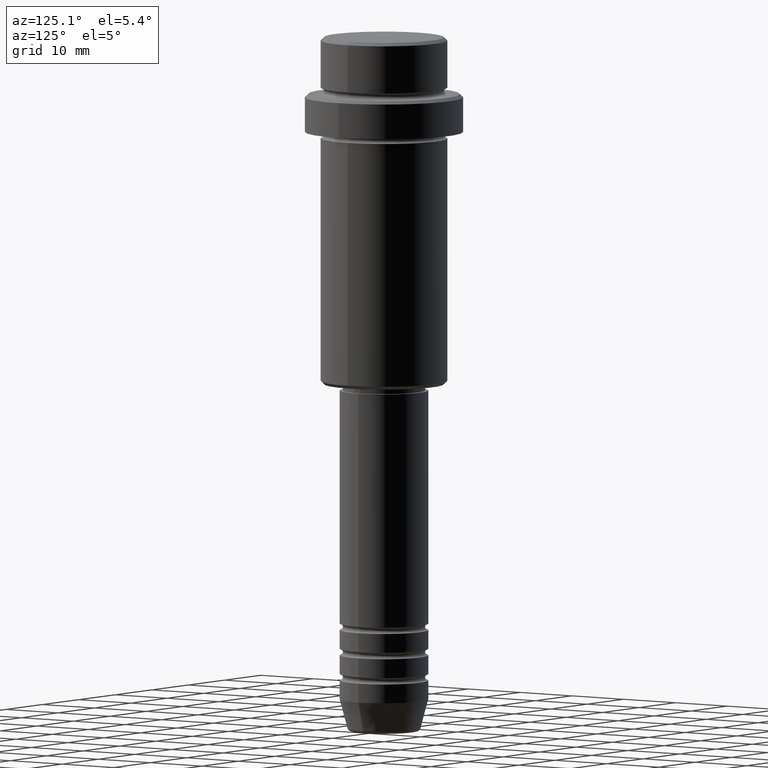
[diagram: clean part render]
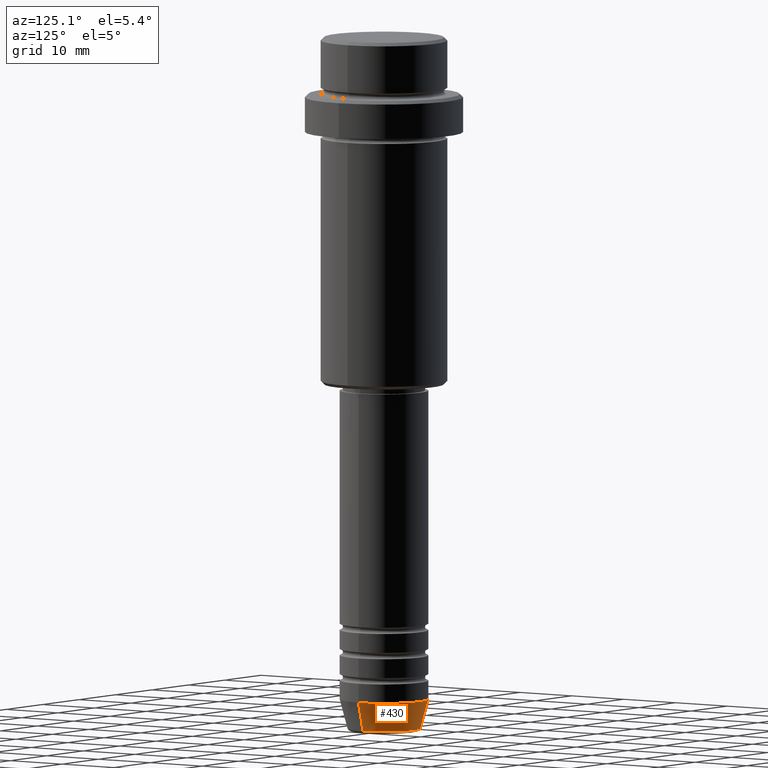
[diagram: same view with one face highlighted and labeled with its STEP entity id]
A machine part, auxiliary view. The second image highlights one B-rep face of the part: STEP entity #430.
In plain terms, the highlighted conical surface has half-angle 15 deg.
Its self-contained STEP definition (entity closure, byte-faithful):
#46 = CIRCLE ( 'NONE', #578, 7.000000000000000000 ) ;
#79 = VERTEX_POINT ( 'NONE', #1351 ) ;
#86 = CARTESIAN_POINT ( 'NONE',  ( 0.000000000000000000, 0.000000000000000000, -105.0000000000000142 ) ) ;
#120 = DIRECTION ( 'NONE',  ( -0.2588190451025213501, 3.169619151431772337E-17, 0.9659258262890680902 ) ) ;
#125 = VERTEX_POINT ( 'NONE', #585 ) ;
#167 = CARTESIAN_POINT ( 'NONE',  ( 5.759553456999435994, 0.000000000000000000, -109.6294095225512564 ) ) ;
#186 = EDGE_CURVE ( 'NONE', #435, #79, #944, .T. ) ;
#253 = CARTESIAN_POINT ( 'NONE',  ( 0.000000000000000000, 0.000000000000000000, -105.0000000000000142 ) ) ;
#291 = DIRECTION ( 'NONE',  ( 0.2588190451025213501, 0.000000000000000000, 0.9659258262890680902 ) ) ;
#310 = ORIENTED_EDGE ( 'NONE', *, *, #745, .F. ) ;
#330 = ORIENTED_EDGE ( 'NONE', *, *, #679, .T. ) ;
#408 = DIRECTION ( 'NONE',  ( 1.000000000000000000, 0.000000000000000000, 0.000000000000000000 ) ) ;
#413 = CARTESIAN_POINT ( 'NONE',  ( 0.000000000000000000, 0.000000000000000000, -109.6294095225512564 ) ) ;
#430 = ADVANCED_FACE ( 'NONE', ( #494 ), #1388, .T. ) ;
#435 = VERTEX_POINT ( 'NONE', #167 ) ;
#437 = CARTESIAN_POINT ( 'NONE',  ( -7.000000000000000000, 8.572527594031473190E-16, -105.0000000000000142 ) ) ;
#461 = VECTOR ( 'NONE', #291, 1000.000000000000000 ) ;
#494 = FACE_OUTER_BOUND ( 'NONE', #996, .T. ) ;
#514 = DIRECTION ( 'NONE',  ( -0.000000000000000000, -0.000000000000000000, 1.000000000000000000 ) ) ;
#578 = AXIS2_PLACEMENT_3D ( 'NONE', #86, #514, #408 ) ;
#585 = CARTESIAN_POINT ( 'NONE',  ( -7.000000000000000000, 8.572527594031473190E-16, -105.0000000000000142 ) ) ;
#636 = LINE ( 'NONE', #437, #914 ) ;
#679 = EDGE_CURVE ( 'NONE', #435, #868, #1202, .T. ) ;
#735 = ORIENTED_EDGE ( 'NONE', *, *, #1183, .T. ) ;
#745 = EDGE_CURVE ( 'NONE', #79, #125, #46, .T. ) ;
#860 = AXIS2_PLACEMENT_3D ( 'NONE', #253, #925, #1356 ) ;
#868 = VERTEX_POINT ( 'NONE', #987 ) ;
#914 = VECTOR ( 'NONE', #120, 1000.000000000000000 ) ;
#925 = DIRECTION ( 'NONE',  ( -0.000000000000000000, -0.000000000000000000, 1.000000000000000000 ) ) ;
#944 = LINE ( 'NONE', #1284, #461 ) ;
#974 = DIRECTION ( 'NONE',  ( 1.000000000000000000, 0.000000000000000000, 0.000000000000000000 ) ) ;
#987 = CARTESIAN_POINT ( 'NONE',  ( -5.759553456999435994, 7.812973149831951773E-16, -109.6294095225512564 ) ) ;
#996 = EDGE_LOOP ( 'NONE', ( #330, #735, #310, #1339 ) ) ;
#1046 = AXIS2_PLACEMENT_3D ( 'NONE', #413, #1053, #974 ) ;
#1053 = DIRECTION ( 'NONE',  ( -0.000000000000000000, -0.000000000000000000, 1.000000000000000000 ) ) ;
#1183 = EDGE_CURVE ( 'NONE', #868, #125, #636, .T. ) ;
#1202 = CIRCLE ( 'NONE', #1046, 5.759553456999435994 ) ;
#1284 = CARTESIAN_POINT ( 'NONE',  ( 7.000000000000000000, 0.000000000000000000, -105.0000000000000142 ) ) ;
#1339 = ORIENTED_EDGE ( 'NONE', *, *, #186, .F. ) ;
#1351 = CARTESIAN_POINT ( 'NONE',  ( 7.000000000000000000, 0.000000000000000000, -105.0000000000000142 ) ) ;
#1356 = DIRECTION ( 'NONE',  ( 1.000000000000000000, 0.000000000000000000, 0.000000000000000000 ) ) ;
#1388 = CONICAL_SURFACE ( 'NONE', #860, 7.000000000000000000, 0.2617993877991500740 ) ;